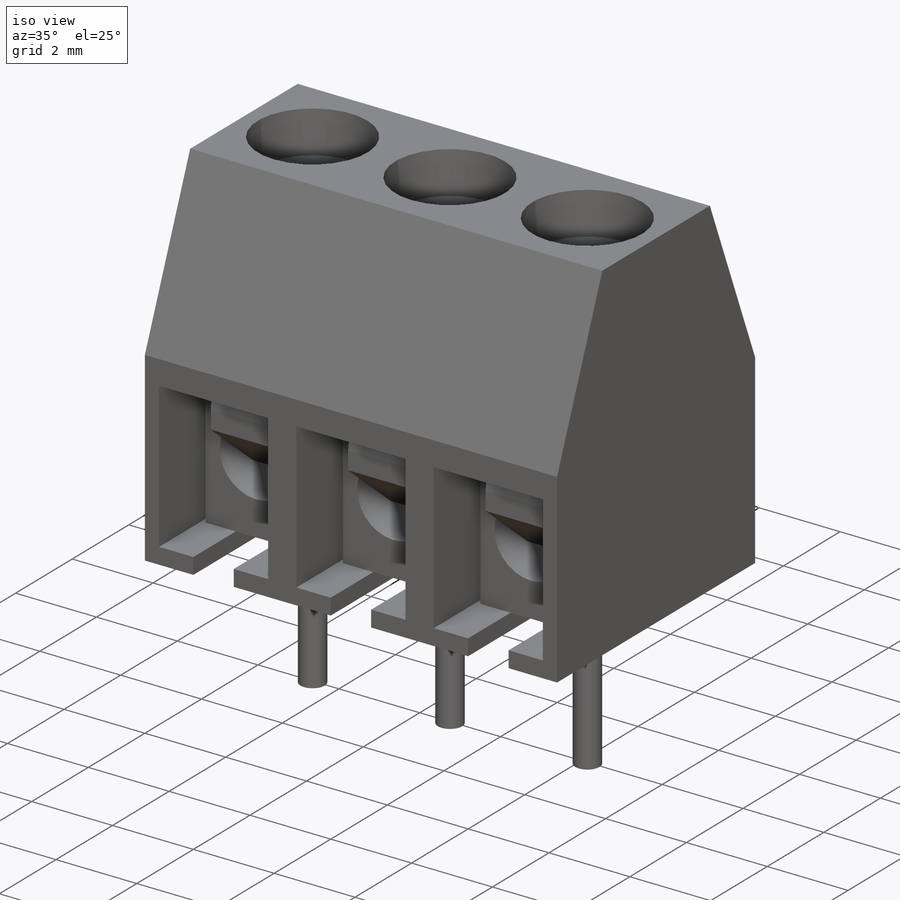
[diagram: iso view]
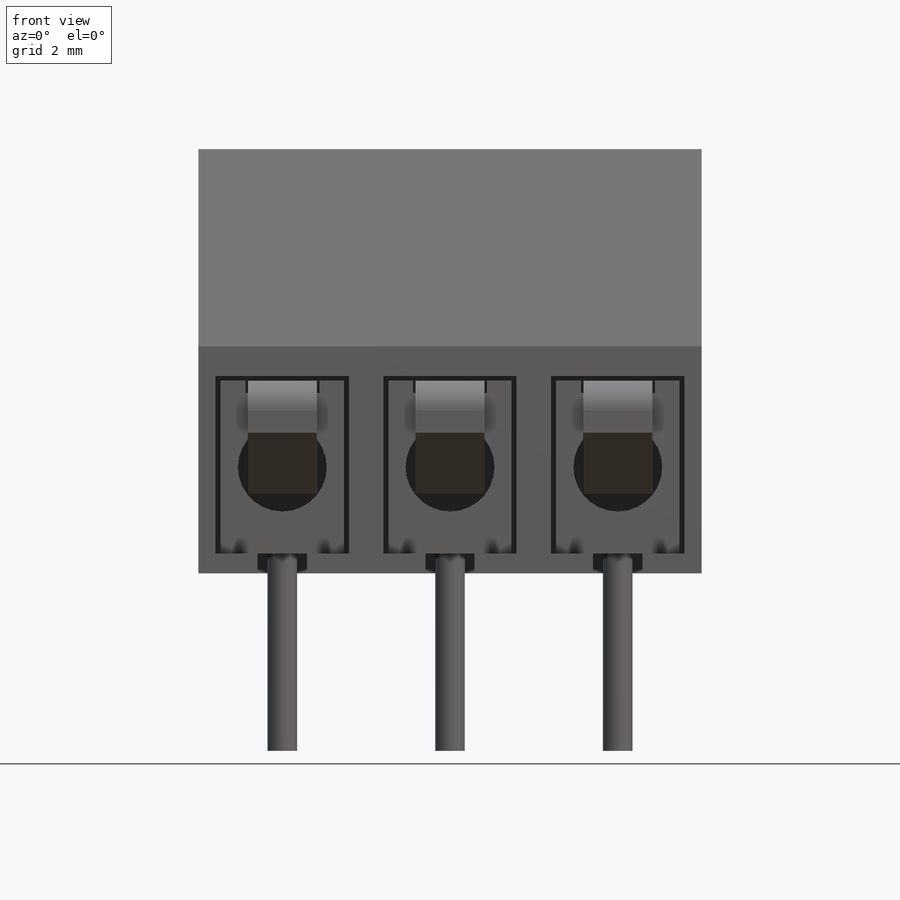
[diagram: front view]
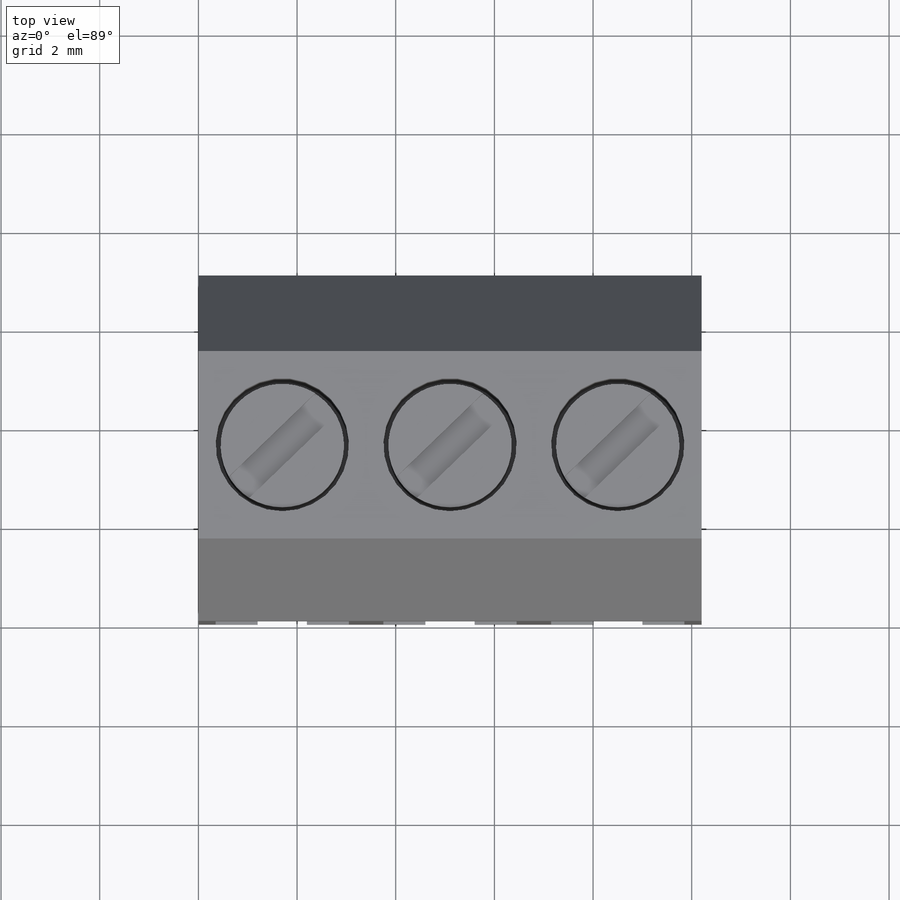
[diagram: top view]
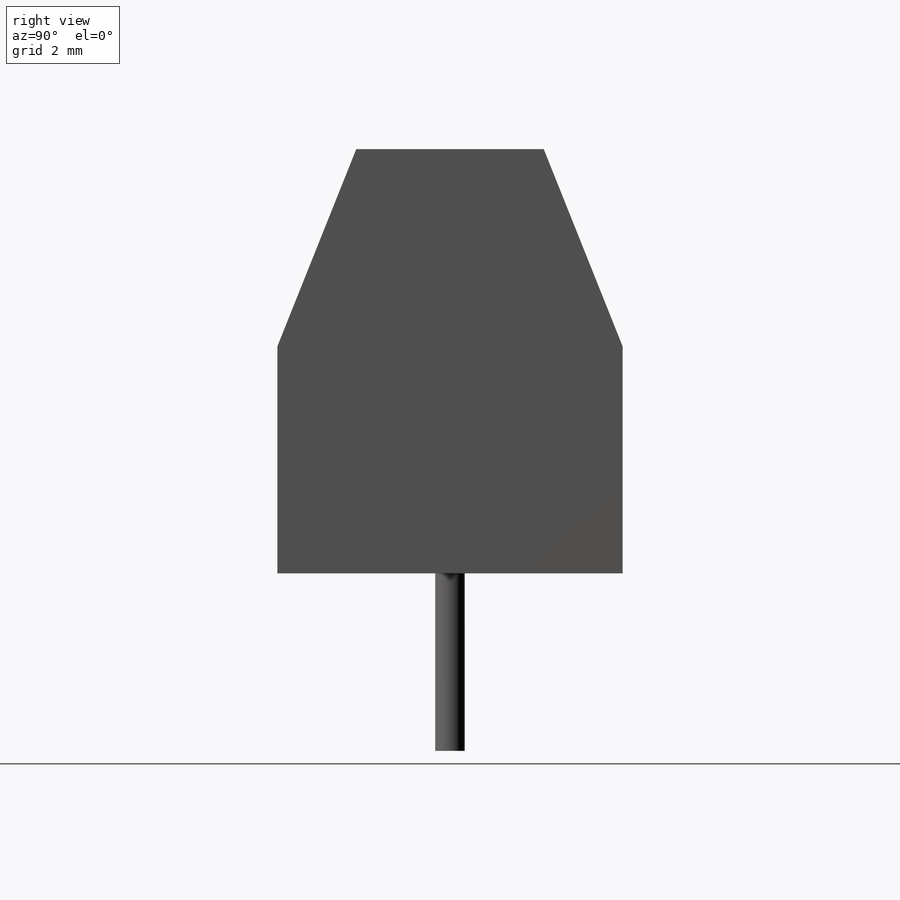
[diagram: right view]
SOLIDWORKS PART (.sldprt)
format: sldprt  version: not decoded by parser v0  size: 543,232 bytes
history: native  units: mm
features: sketch x8, plane x4, extrude x4, cut_extrude x3, pattern_linear x2, material x1 (+10 scaffold rows collapsed)
feature tree (32):
  scaffold x10  (default folders/planes/origin — collapsed)
  material  "Matériau <non spécifié>"
  plane  "Plan de face"
  plane  "Plan de dessus"
  plane  "Plan de droite"
  sketch  "Esquisse1"  dims[c1.D1=7.0mm c1.D2=8.6mm c1.D3=6.0mm c1.D4=4.0mm c2.D3=3.8mm]
  extrude  "Boss.-Extru.1"  Depth=3.4mm
  sketch  "Esquisse2"  dims[D1=2.7mm D2=3.6mm D3=0.4mm D4=1.0mm]
  cut_extrude  "Enlèv. mat.-Extru.1"  Depth=6mm
  sketch  "Esquisse3"  dims[D1=2.7mm]
  cut_extrude  "Enlèv. mat.-Extru.2"  [1 undecoded]
  sketch  "Esquisse4"  dims[D1=2.5mm]
  extrude  "Boss.-Extru.2"  Depth=3.4mm
  sketch  "Esquisse5"  dims[c1.D1=0.6mm c1.D2=~2.426932mm c2.D2=46.0deg]
  cut_extrude  "Enlèv. mat.-Extru.3"  Depth=0.4mm
  sketch  "Esquisse6"  dims[D3=1.8mm D1=3.5mm D2=2.5mm D4=1.5mm D5=0.25mm]
  extrude  "Boss.-Extru.3"  Depth=1.5mm
  sketch  "Esquisse7"  dims[D1=0.6mm D2=3.5mm]
  extrude  "Boss.-Extru.4"  Depth=4mm
  plane  "Plan1"
  sketch  "Esquisse8"  dims[c1.D2=0.5mm c1.D1=0.15mm c1.D3=0.4mm c1.D4=1.9mm c1.D5=~1.558486mm c2.D5=130.0deg c2.D1=1.4mm c3.D5=0.2mm c3.D6=1.0mm c3.D7=5.0mm]
  pattern_linear  "Répétition linéaire2"  Count1=3 Count2=1 Spacing1=3.4mm Spacing2=10mm
  pattern_linear  "Répétition linéaire3"  Count1=3 Count2=1 Spacing1=3.4mm Spacing2=10mm
decode coverage: 16 of 17 modeling features carry decoded parameters
note: ~ marks probable driven/reference dimensions
note: 1 parameter value undecoded
note: suppression state not decoded; provenance and decode notes live in map.json
